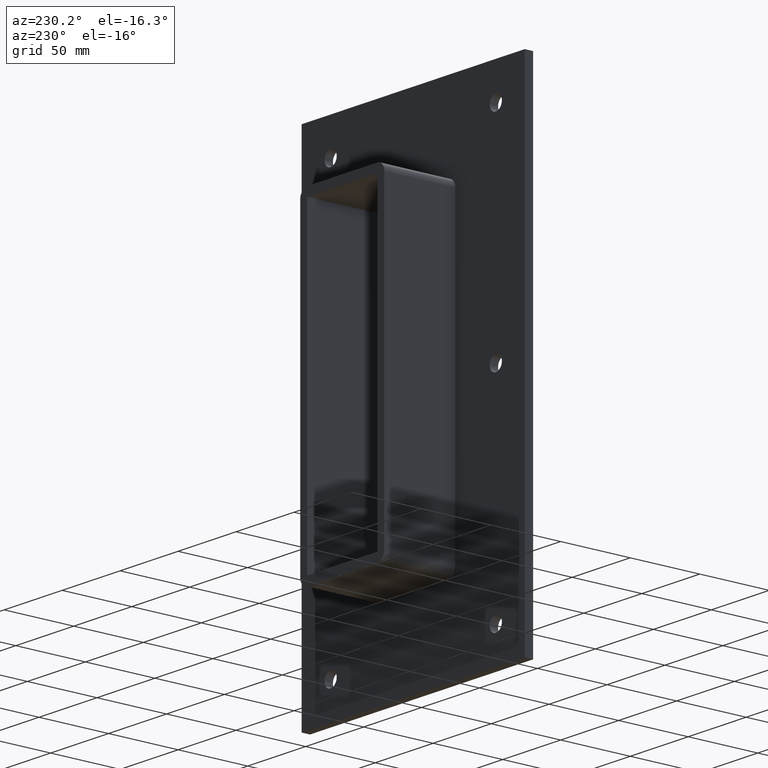
[diagram: clean part render]
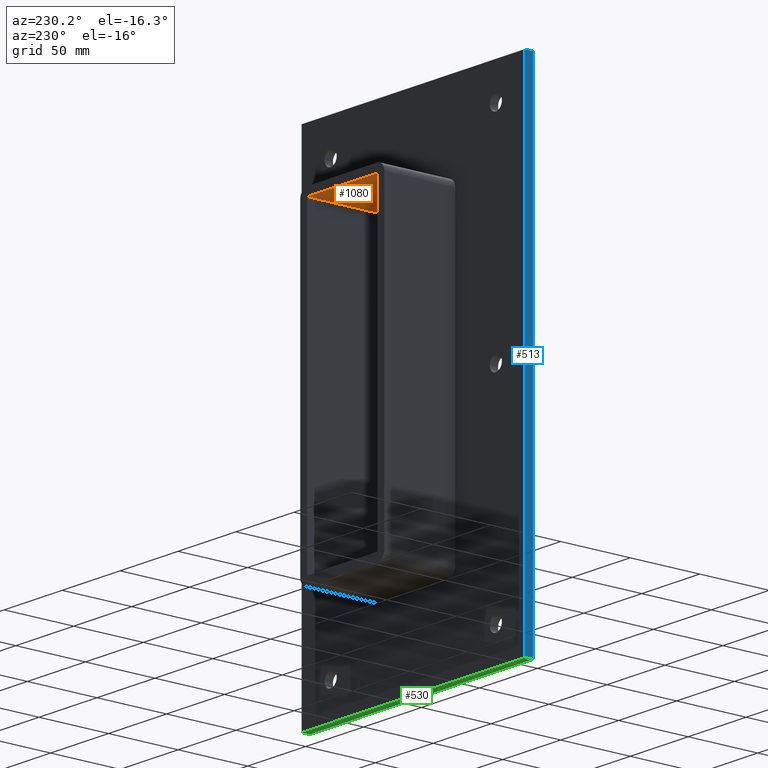
[diagram: same view with three faces highlighted in distinct colors, each labeled with its STEP entity id]
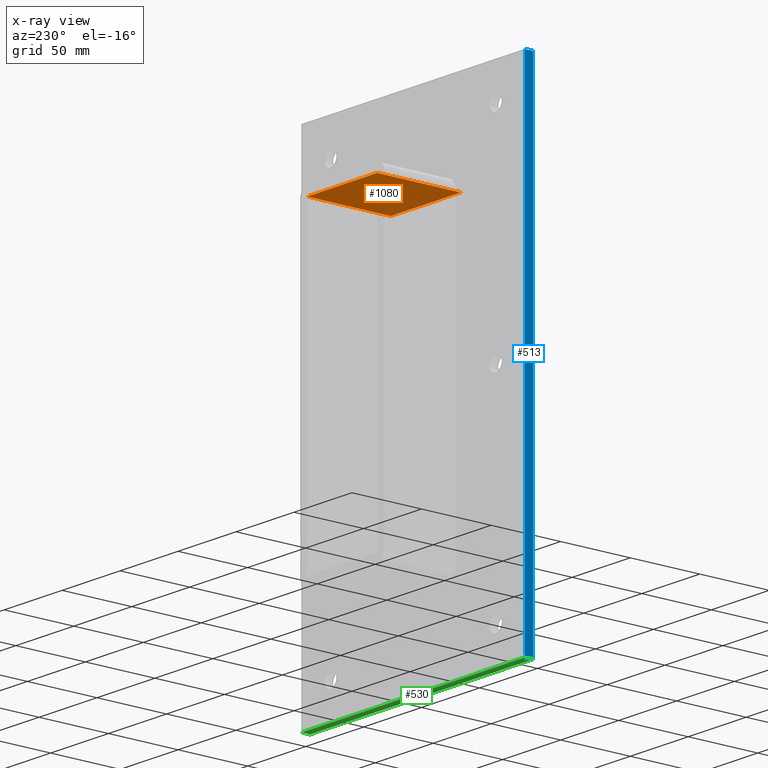
[diagram: x-ray of the same camera — body ghosted, the three highlighted faces saturated]
A machine part, auxiliary view with three faces highlighted in distinct colors.
The next image is the same camera in x-ray (body ghosted, the three faces saturated) — at least one of them is partly hidden behind the body in this view.
Their STEP definitions:

[orange] entity #1080 — the highlighted planar face has unit normal (0, 0, 1).
#575=CARTESIAN_POINT('',(-30.249999999999986,57.0,109.00000000000003));
#576=VERTEX_POINT('',#575);
#583=CARTESIAN_POINT('',(-30.249999999999986,-3.0,109.00000000000003));
#584=VERTEX_POINT('',#583);
#585=CARTESIAN_POINT('',(-30.249999999999986,-3.0,109.00000000000003));
#586=DIRECTION('',(0.0,1.0,0.0));
#587=VECTOR('',#586,60.0);
#588=LINE('',#585,#587);
#589=EDGE_CURVE('',#584,#576,#588,.T.);
#916=CARTESIAN_POINT('',(30.249999999999986,-3.0,109.00000000000003));
#917=VERTEX_POINT('',#916);
#933=CARTESIAN_POINT('',(-30.249999999999986,-3.0,109.00000000000006));
#934=DIRECTION('',(1.0,0.0,0.0));
#935=VECTOR('',#934,60.499999999999972);
#936=LINE('',#933,#935);
#937=EDGE_CURVE('',#584,#917,#936,.T.);
#1047=CARTESIAN_POINT('',(30.249999999999986,57.0,109.00000000000003));
#1048=VERTEX_POINT('',#1047);
#1049=CARTESIAN_POINT('',(30.249999999999986,-3.0,109.00000000000003));
#1050=DIRECTION('',(0.0,1.0,0.0));
#1051=VECTOR('',#1050,60.0);
#1052=LINE('',#1049,#1051);
#1053=EDGE_CURVE('',#917,#1048,#1052,.T.);
#1064=CARTESIAN_POINT('',(-30.249999999999986,0.0,109.00000000000006));
#1065=DIRECTION('',(0.0,0.0,1.0));
#1066=DIRECTION('',(1.0,0.0,0.0));
#1067=AXIS2_PLACEMENT_3D('',#1064,#1065,#1066);
#1068=PLANE('',#1067);
#1069=ORIENTED_EDGE('',*,*,#589,.T.);
#1070=CARTESIAN_POINT('',(30.249999999999986,57.0,109.00000000000006));
#1071=DIRECTION('',(-1.0,0.0,0.0));
#1072=VECTOR('',#1071,60.499999999999972);
#1073=LINE('',#1070,#1072);
#1074=EDGE_CURVE('',#1048,#576,#1073,.T.);
#1075=ORIENTED_EDGE('',*,*,#1074,.F.);
#1076=ORIENTED_EDGE('',*,*,#1053,.F.);
#1077=ORIENTED_EDGE('',*,*,#937,.F.);
#1078=EDGE_LOOP('',(#1069,#1075,#1076,#1077));
#1079=FACE_OUTER_BOUND('',#1078,.T.);
#1080=ADVANCED_FACE('',(#1079),#1068,.F.);

[blue] entity #513 — the highlighted planar face has unit normal (-1, 0, 0).
#241=CARTESIAN_POINT('',(-96.249999999999972,6.000000000000001,175.0));
#242=VERTEX_POINT('',#241);
#259=CARTESIAN_POINT('',(-96.249999999999972,6.000000000000001,-175.0));
#260=VERTEX_POINT('',#259);
#267=CARTESIAN_POINT('',(-96.249999999999972,6.000000000000001,-175.0));
#268=DIRECTION('',(0.0,0.0,1.0));
#269=VECTOR('',#268,350.0);
#270=LINE('',#267,#269);
#271=EDGE_CURVE('',#260,#242,#270,.T.);
#369=CARTESIAN_POINT('',(-96.249999999999972,0.0,175.0));
#370=VERTEX_POINT('',#369);
#379=CARTESIAN_POINT('',(-96.249999999999972,0.0,-175.0));
#380=VERTEX_POINT('',#379);
#381=CARTESIAN_POINT('',(-96.249999999999972,0.0,-175.0));
#382=DIRECTION('',(0.0,0.0,1.0));
#383=VECTOR('',#382,350.0);
#384=LINE('',#381,#383);
#385=EDGE_CURVE('',#380,#370,#384,.T.);
#492=CARTESIAN_POINT('',(-96.249999999999972,0.0,-175.0));
#493=DIRECTION('',(-1.0,0.0,0.0));
#494=DIRECTION('',(0.0,0.0,1.0));
#495=AXIS2_PLACEMENT_3D('',#492,#493,#494);
#496=PLANE('',#495);
#497=ORIENTED_EDGE('',*,*,#385,.T.);
#498=CARTESIAN_POINT('',(-96.249999999999972,0.0,175.0));
#499=DIRECTION('',(0.0,1.0,0.0));
#500=VECTOR('',#499,6.000000000000001);
#501=LINE('',#498,#500);
#502=EDGE_CURVE('',#370,#242,#501,.T.);
#503=ORIENTED_EDGE('',*,*,#502,.T.);
#504=ORIENTED_EDGE('',*,*,#271,.F.);
#505=CARTESIAN_POINT('',(-96.249999999999972,0.0,-175.0));
#506=DIRECTION('',(0.0,1.0,0.0));
#507=VECTOR('',#506,6.000000000000001);
#508=LINE('',#505,#507);
#509=EDGE_CURVE('',#380,#260,#508,.T.);
#510=ORIENTED_EDGE('',*,*,#509,.F.);
#511=EDGE_LOOP('',(#497,#503,#504,#510));
#512=FACE_OUTER_BOUND('',#511,.T.);
#513=ADVANCED_FACE('',(#512),#496,.T.);

[green] entity #530 — the highlighted planar face has unit normal (0, 0, -1).
#251=CARTESIAN_POINT('',(96.249999999999972,6.000000000000001,-175.0));
#252=VERTEX_POINT('',#251);
#259=CARTESIAN_POINT('',(-96.249999999999972,6.000000000000001,-175.0));
#260=VERTEX_POINT('',#259);
#261=CARTESIAN_POINT('',(96.249999999999986,6.000000000000001,-175.0));
#262=DIRECTION('',(-1.0,0.0,0.0));
#263=VECTOR('',#262,192.49999999999994);
#264=LINE('',#261,#263);
#265=EDGE_CURVE('',#252,#260,#264,.T.);
#379=CARTESIAN_POINT('',(-96.249999999999972,0.0,-175.0));
#380=VERTEX_POINT('',#379);
#387=CARTESIAN_POINT('',(96.249999999999986,0.0,-175.0));
#388=VERTEX_POINT('',#387);
#389=CARTESIAN_POINT('',(96.249999999999986,0.0,-175.0));
#390=DIRECTION('',(-1.0,0.0,0.0));
#391=VECTOR('',#390,192.49999999999994);
#392=LINE('',#389,#391);
#393=EDGE_CURVE('',#388,#380,#392,.T.);
#505=CARTESIAN_POINT('',(-96.249999999999972,0.0,-175.0));
#506=DIRECTION('',(0.0,1.0,0.0));
#507=VECTOR('',#506,6.000000000000001);
#508=LINE('',#505,#507);
#509=EDGE_CURVE('',#380,#260,#508,.T.);
#514=CARTESIAN_POINT('',(96.249999999999986,0.0,-175.0));
#515=DIRECTION('',(0.0,0.0,-1.0));
#516=DIRECTION('',(-1.0,0.0,0.0));
#517=AXIS2_PLACEMENT_3D('',#514,#515,#516);
#518=PLANE('',#517);
#519=ORIENTED_EDGE('',*,*,#393,.T.);
#520=ORIENTED_EDGE('',*,*,#509,.T.);
#521=ORIENTED_EDGE('',*,*,#265,.F.);
#522=CARTESIAN_POINT('',(96.249999999999986,0.0,-175.0));
#523=DIRECTION('',(0.0,1.0,0.0));
#524=VECTOR('',#523,6.000000000000001);
#525=LINE('',#522,#524);
#526=EDGE_CURVE('',#388,#252,#525,.T.);
#527=ORIENTED_EDGE('',*,*,#526,.F.);
#528=EDGE_LOOP('',(#519,#520,#521,#527));
#529=FACE_OUTER_BOUND('',#528,.T.);
#530=ADVANCED_FACE('',(#529),#518,.T.);